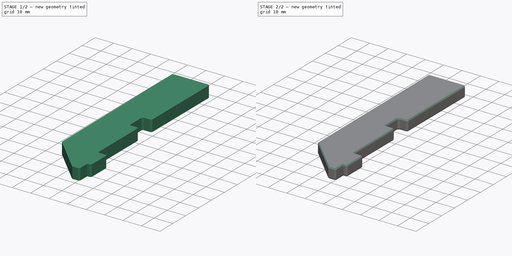
[diagram: build sequence overview — one tinted view per stage of 2, left to right]
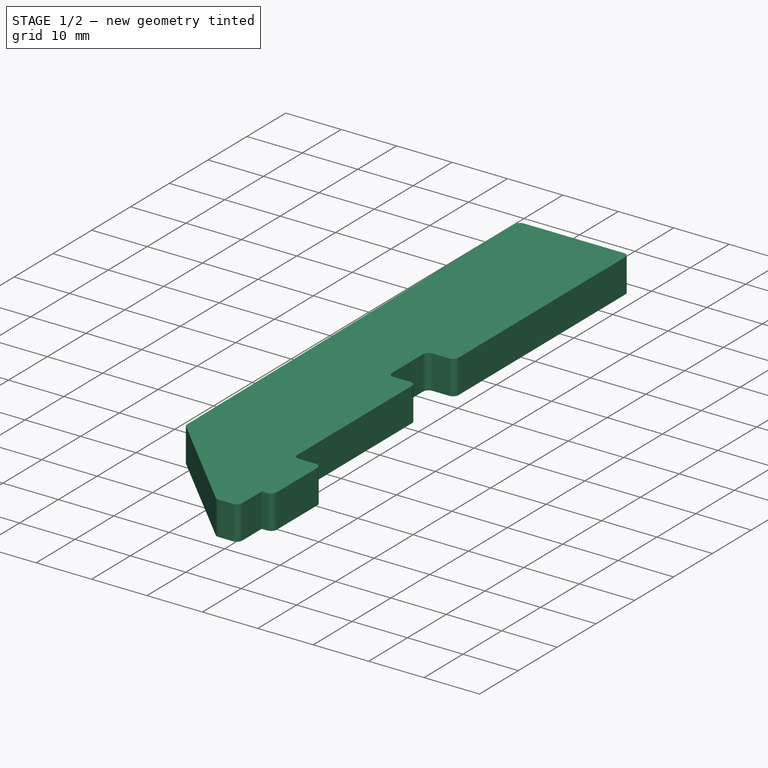
[diagram: stage 1 of 2 — iso view after this stage's code; geometry added in this stage tinted green]
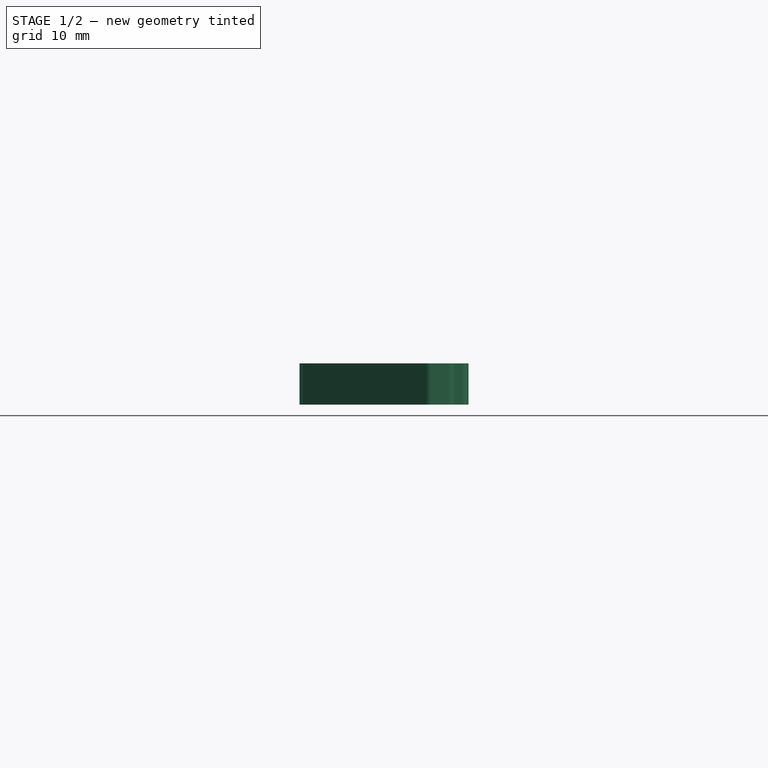
[diagram: stage 1 of 2 — front view after this stage's code; geometry added in this stage tinted green]
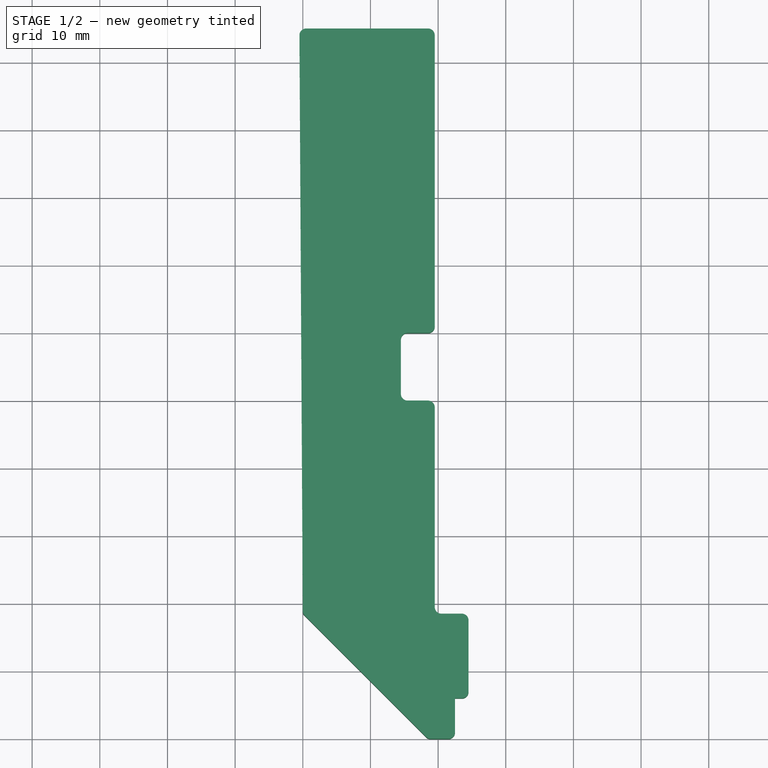
[diagram: stage 1 of 2 — top view after this stage's code; geometry added in this stage tinted green]
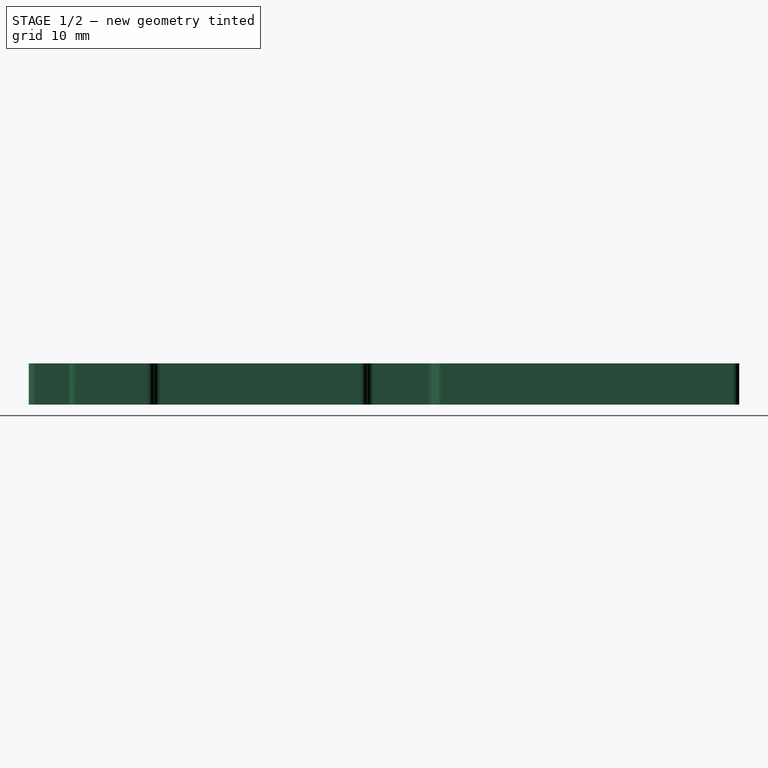
[diagram: stage 1 of 2 — right view after this stage's code; geometry added in this stage tinted green]
FCSTD DOCUMENT  (FreeCAD 0.21R33771 (Git))
Label: HeightPadding
License: All rights reserved
LicenseURL: http://en.wikipedia.org/wiki/All_rights_reserved
objects: PartDesign::Fillet×2, Sketcher::SketchObject×1, PartDesign::Pad×1, PartDesign::Body×1
note: 8 computed .brp shape members not serialized (recipe doc carries the construction recipe); baked Part::Feature solids carry a one-line shape summary decoded from their .brp

FEATURE [Sketcher::SketchObject] Sketch
  FullyConstrained = true
  MapMode = 5
  Support = -> [XY_Plane]
  sketch-geometry (13):
    g0: LineSegment StartX=-0.5 StartY=105 StartZ=0 EndX=19.5 EndY=105 EndZ=0
    g1: LineSegment StartX=19.5 StartY=105 StartZ=0 EndX=19.5 EndY=60 EndZ=0
    g2: LineSegment StartX=19.5 StartY=18.5 StartZ=0 EndX=24.5 EndY=18.5 EndZ=0
    g3: LineSegment StartX=24.5 StartY=18.5 StartZ=0 EndX=24.5 EndY=6 EndZ=0
    g4: LineSegment StartX=22.5 StartY=0 StartZ=0 EndX=18.5 EndY=0 EndZ=0
    g5: LineSegment StartX=18.5 StartY=0 StartZ=0 EndX=0 EndY=18.5 EndZ=0
    g6: LineSegment StartX=0 StartY=18.5 StartZ=0 EndX=-0.5 EndY=105 EndZ=0
    g7: LineSegment StartX=22.5 StartY=0 StartZ=0 EndX=22.5 EndY=6 EndZ=0
    g8: LineSegment StartX=22.5 StartY=6 StartZ=0 EndX=24.5 EndY=6 EndZ=0
    g9: LineSegment StartX=19.5 StartY=60 StartZ=0 EndX=14.5 EndY=60 EndZ=0
    g10: LineSegment StartX=14.5 StartY=60 StartZ=0 EndX=14.5 EndY=50 EndZ=0
    g11: LineSegment StartX=14.5 StartY=50 StartZ=0 EndX=19.5 EndY=50 EndZ=0
    g12: LineSegment StartX=19.5 StartY=50 StartZ=0 EndX=19.5 EndY=18.5 EndZ=0
  constraints (39):
    c: Horizontal(g0)
    c: Coincident(g0,g1)
    c: Vertical(g1)
    c: Horizontal(g2)
    c: Coincident(g2,g3)
    c: Vertical(g3)
    c: PointOnObject(g4,g-1)
    c: Coincident(g4,g5)
    c: PointOnObject(g5,g-2)
    c: Coincident(g5,g6)
    c: Coincident(g6,g0)
    c: DistanceY(g3,g0) = 99
    c: DistanceX(g0,g0) = 20
    c: DistanceX(g2,g2) = 5
    c: Angle(g4,g5) = 2.35619
    c: DistanceX(g4,g2) = 6
    c: Horizontal(g4)
    c: DistanceX(g4,g3) = 2
    c: DistanceY(g4,g3) = 6
    c: Coincident(g7,g4)
    c: Vertical(g7)
    c: Coincident(g8,g7)
    c: Coincident(g8,g3)
    c: Horizontal(g8)
    c: DistanceY(g-1,g2) = 18.5
    c: DistanceY(g1,g1) = 45
    c: Horizontal(g5,g2)
    c: Coincident(g1,g9)
    c: Horizontal(g9)
    c: Coincident(g9,g10)
    c: Vertical(g10)
    c: Coincident(g10,g11)
    c: Horizontal(g11)
    c: Coincident(g11,g12)
    c: Coincident(g12,g2)
    c: Vertical(g12)
    c: Vertical(g1,g11)
    c: DistanceY(g10,g10) = 10
    c: DistanceX(g10,g11) = 5
FEATURE [PartDesign::Pad] Pad
  Direction = (0,0,1)
  Length = 6.1
  Length2 = 10
  Profile = -> Sketch
  ReferenceAxis = -> Sketch [N_Axis]
  Type = 0
  expr: Length = 8.2 - 2.1
FEATURE [PartDesign::Fillet] Fillet
  Base = -> Pad [Edge1,Edge23,Edge20,Edge17,Edge2,Edge5,Edge11,Edge8,Edge14,Edge32,Edge29,Edge26]
  BaseFeature = -> Pad
  Radius = 0.99
  SupportTransform = false
  UseAllEdges = false
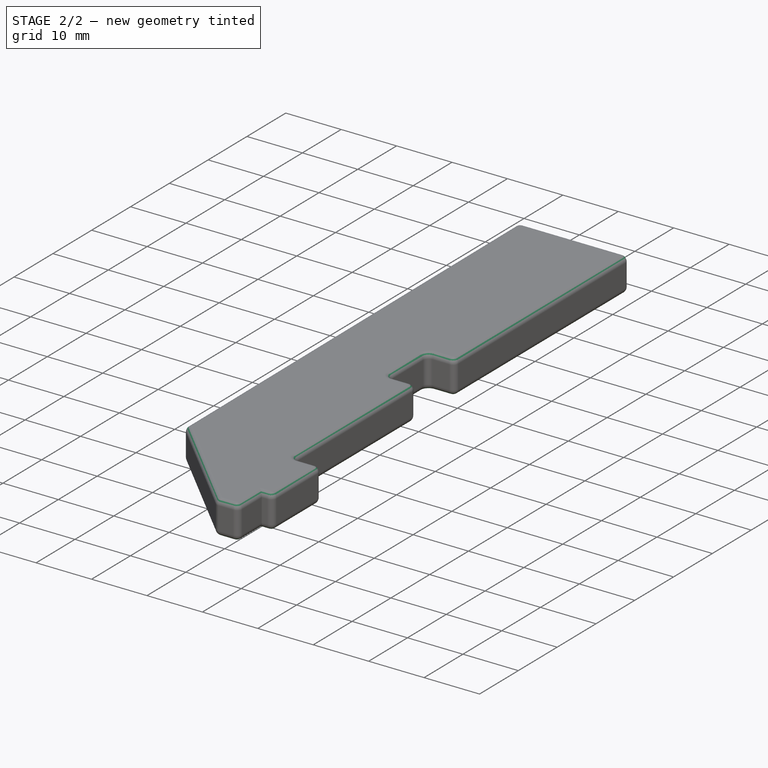
[diagram: stage 2 of 2 — iso view after this stage's code; geometry added in this stage tinted green]
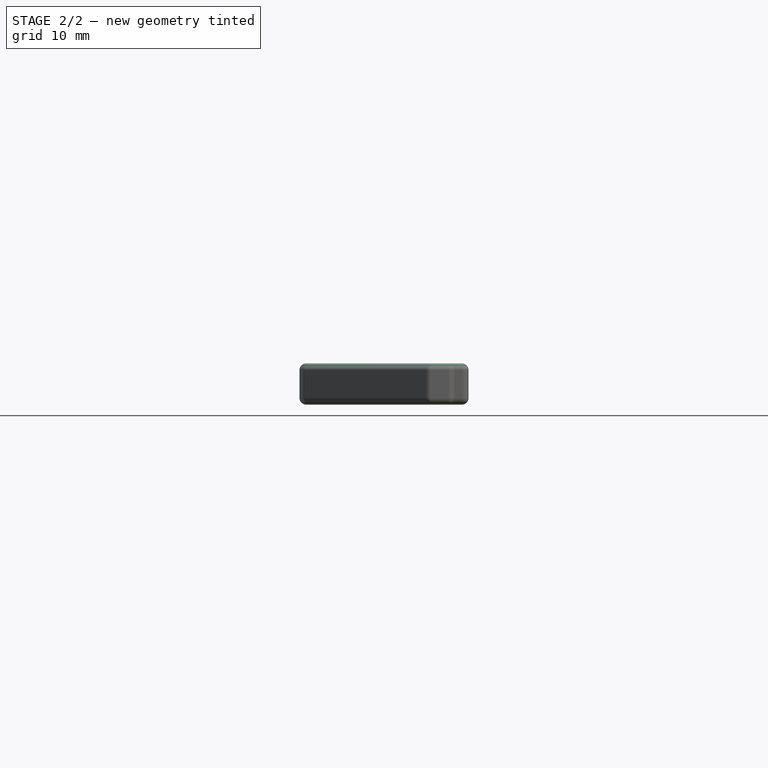
[diagram: stage 2 of 2 — front view after this stage's code; geometry added in this stage tinted green]
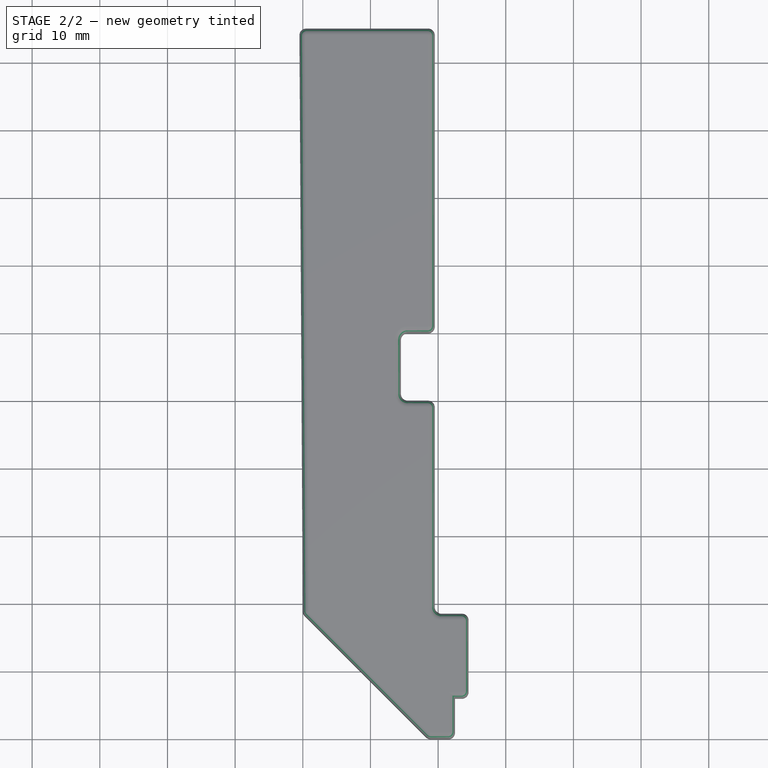
[diagram: stage 2 of 2 — top view after this stage's code; geometry added in this stage tinted green]
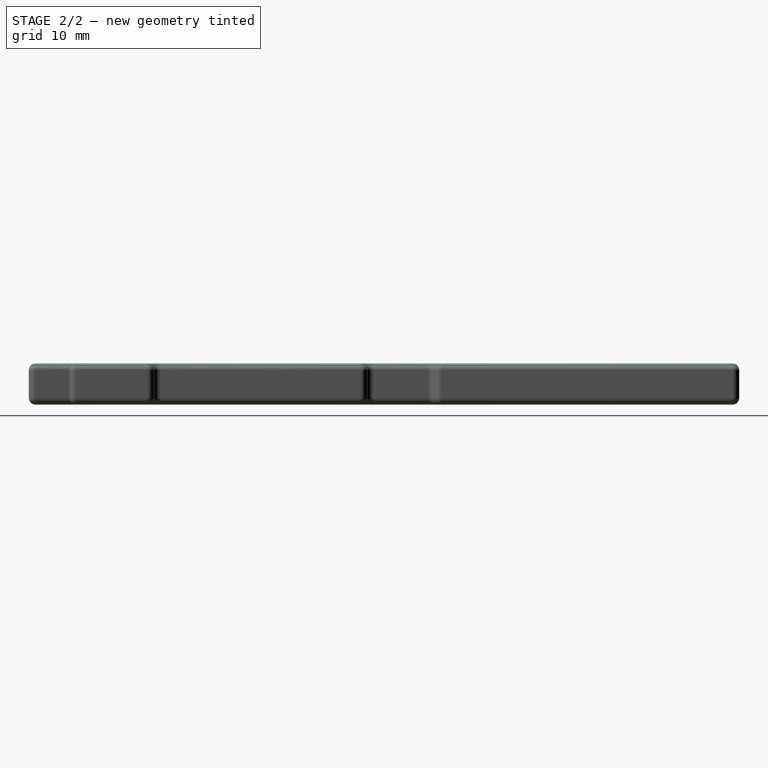
[diagram: stage 2 of 2 — right view after this stage's code; geometry added in this stage tinted green]
FEATURE [PartDesign::Fillet] Fillet001
  Base = -> Fillet [Edge42,Edge16]
  BaseFeature = -> Fillet
  Radius = 1
  SupportTransform = false
  UseAllEdges = false
FEATURE [PartDesign::Body] Body
  Group = -> [Sketch,Pad,Fillet,Fillet001]
  Origin = -> Origin
  Tip = -> Fillet001
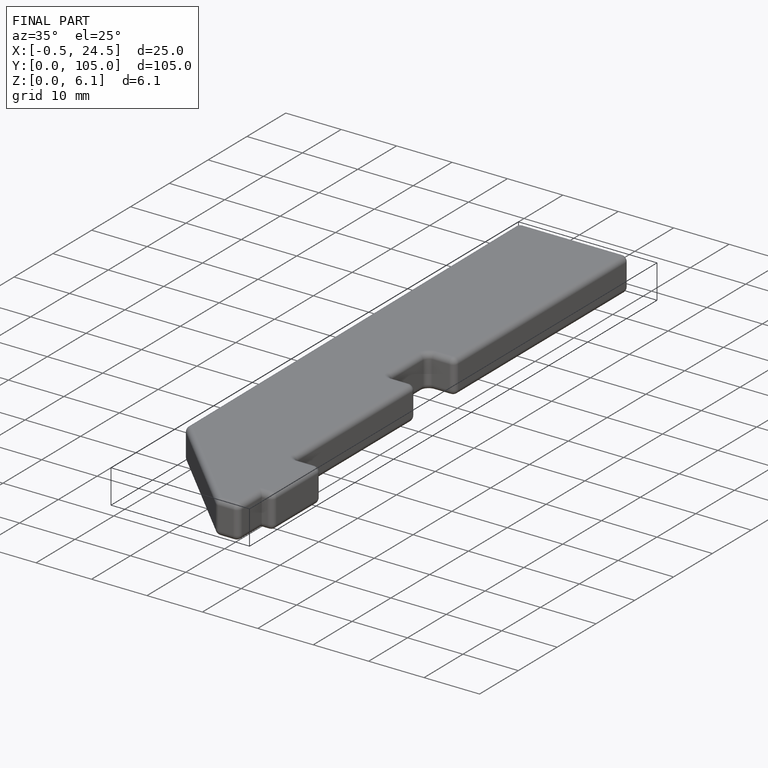
[diagram: finished part — iso view with bounding-box wireframe]
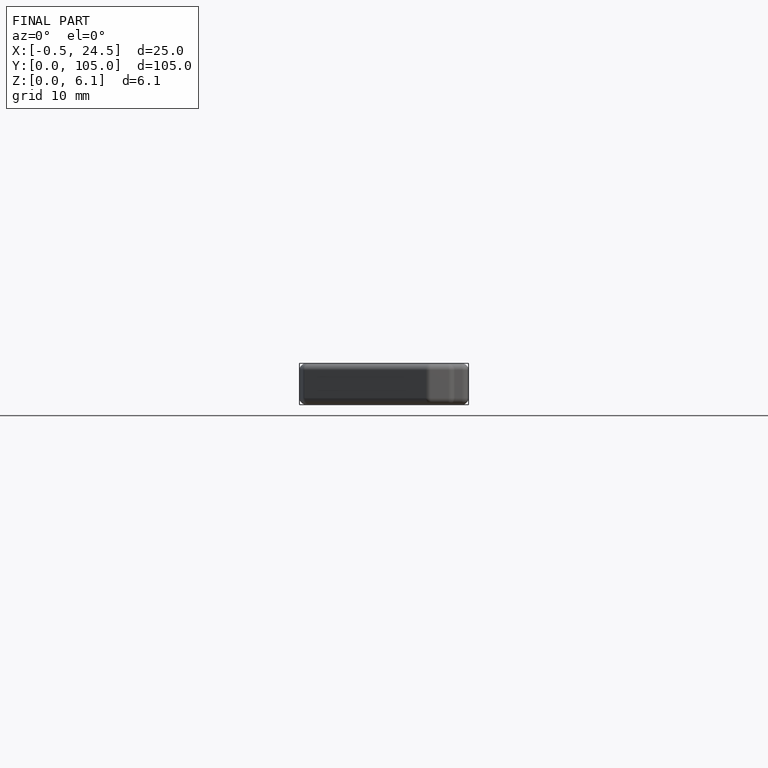
[diagram: finished part — front view with bounding-box wireframe]
